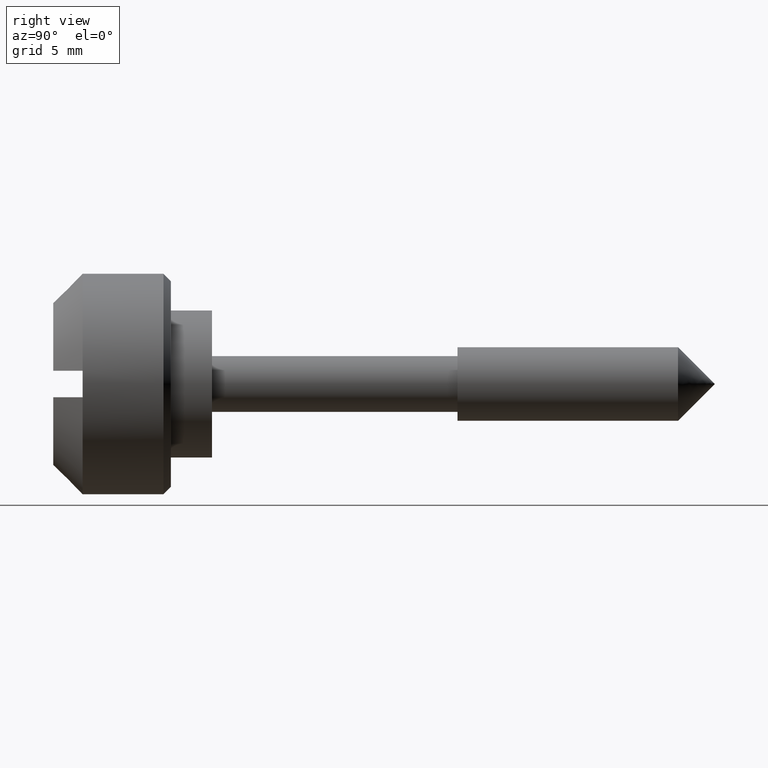
[diagram: clean part render]
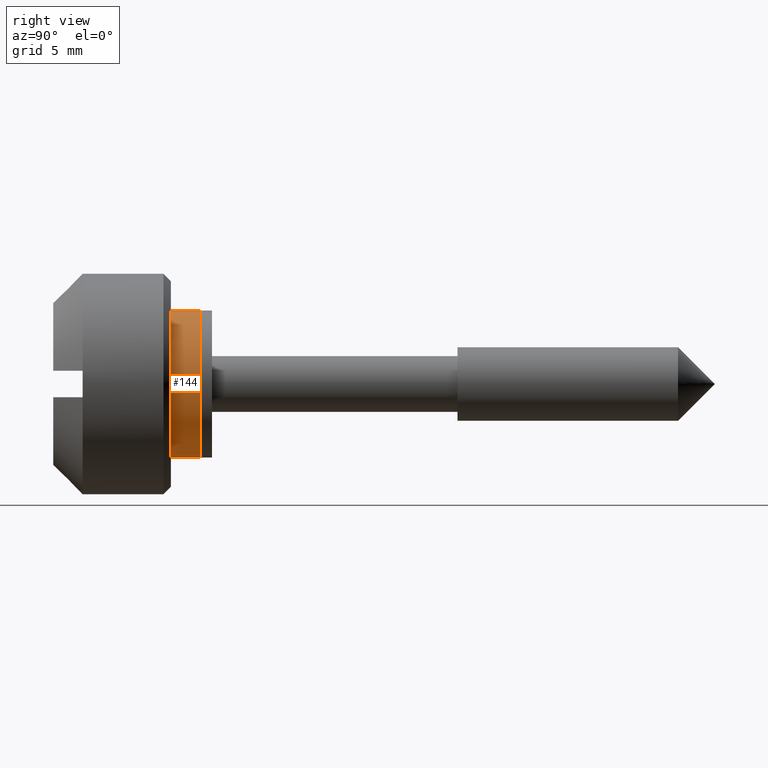
[diagram: same view with one face highlighted and labeled with its STEP entity id]
A machine part, right view. The second image highlights one B-rep face of the part: STEP entity #144.
In plain terms, the highlighted cylindrical surface (partial cylindrical patch) has radius 5 mm, axis along (0, -1, -0).
Its self-contained STEP definition (entity closure, byte-faithful):
#144=ADVANCED_FACE('',(#480),#479,.T.);
#479=CYLINDRICAL_SURFACE('',#771,5.00000000000E+00);
#480=FACE_OUTER_BOUND('',#772,.T.);
#768=CARTESIAN_POINT('',(-1.00000000000E+03,0.00000000000E+00,0.00000000000E+00));
#769=DIRECTION('',(-1.00000000000E+00,-0.00000000000E+00,-0.00000000000E+00));
#770=DIRECTION('',(0.00000000000E+00,1.22464679915E-16,-1.00000000000E+00));
#771=AXIS2_PLACEMENT_3D('',#768,#769,#770);
#772=EDGE_LOOP('',(#984,#985,#986,#987));
#984=ORIENTED_EDGE('',*,*,#1082,.F.);
#985=ORIENTED_EDGE('',*,*,#1112,.F.);
#986=ORIENTED_EDGE('',*,*,#1084,.F.);
#987=ORIENTED_EDGE('',*,*,#1113,.T.);
#1082=EDGE_CURVE('',#1498,#1499,#1500,.T.);
#1084=EDGE_CURVE('',#1512,#1513,#1514,.T.);
#1112=EDGE_CURVE('',#1513,#1498,#1700,.T.);
#1113=EDGE_CURVE('',#1512,#1499,#1706,.T.);
#1498=VERTEX_POINT('',#2001);
#1499=VERTEX_POINT('',#2002);
#1500=CIRCLE('',#2006,5.00000000000E+00);
#1512=VERTEX_POINT('',#2011);
#1513=VERTEX_POINT('',#2012);
#1514=CIRCLE('',#2016,5.00000000000E+00);
#1700=(BOUNDED_CURVE() B_SPLINE_CURVE(1,(#2135,#2136),.UNSPECIFIED.,.F.,.F.) B_SPLINE_CURVE_WITH_KNOTS((2,2),(8.33333134656E-02,9.16666653270E-01),.UNSPECIFIED.) CURVE() GEOMETRIC_REPRESENTATION_ITEM() RATIONAL_B_SPLINE_CURVE((1.00000000000E+00,1.00000000000E+00)) REPRESENTATION_ITEM('') );
#1706=(BOUNDED_CURVE() B_SPLINE_CURVE(1,(#2137,#2138),.UNSPECIFIED.,.F.,.F.) B_SPLINE_CURVE_WITH_KNOTS((2,2),(8.33333333333E-02,9.16666666667E-01),.UNSPECIFIED.) CURVE() GEOMETRIC_REPRESENTATION_ITEM() RATIONAL_B_SPLINE_CURVE((7.50000000000E-01,7.50000000000E-01)) REPRESENTATION_ITEM('') );
#2001=CARTESIAN_POINT('',(-2.00000000000E+00,0.00000000000E+00,-5.00000000000E+00));
#2002=CARTESIAN_POINT('',(-2.00000000000E+00,5.92118946467E-16,5.00000000000E+00));
#2003=CARTESIAN_POINT('',(-2.00000000000E+00,0.00000000000E+00,0.00000000000E+00));
#2004=DIRECTION('',(-1.00000000000E+00,0.00000000000E+00,-0.00000000000E+00));
#2005=DIRECTION('',(0.00000000000E+00,-1.22460635382E-16,-1.00000000000E+00));
#2006=AXIS2_PLACEMENT_3D('',#2003,#2004,#2005);
#2011=CARTESIAN_POINT('',(0.00000000000E+00,0.00000000000E+00,5.00000000000E+00));
#2012=CARTESIAN_POINT('',(0.00000000000E+00,5.92118946467E-16,-5.00000000000E+00));
#2013=CARTESIAN_POINT('',(0.00000000000E+00,0.00000000000E+00,0.00000000000E+00));
#2014=DIRECTION('',(1.00000000000E+00,0.00000000000E+00,-0.00000000000E+00));
#2015=DIRECTION('',(0.00000000000E+00,-1.22460635382E-16,1.00000000000E+00));
#2016=AXIS2_PLACEMENT_3D('',#2013,#2014,#2015);
#2135=CARTESIAN_POINT('',(4.76825537110E-08,6.12323399574E-16,-5.00000000000E+00));
#2136=CARTESIAN_POINT('',(-1.99999996785E+00,6.12323399574E-16,-5.00000000000E+00));
#2137=CARTESIAN_POINT('',(3.70074341542E-17,-2.96059473233E-16,5.00000000000E+00));
#2138=CARTESIAN_POINT('',(-2.00000000000E+00,-2.96059473233E-16,5.00000000000E+00));